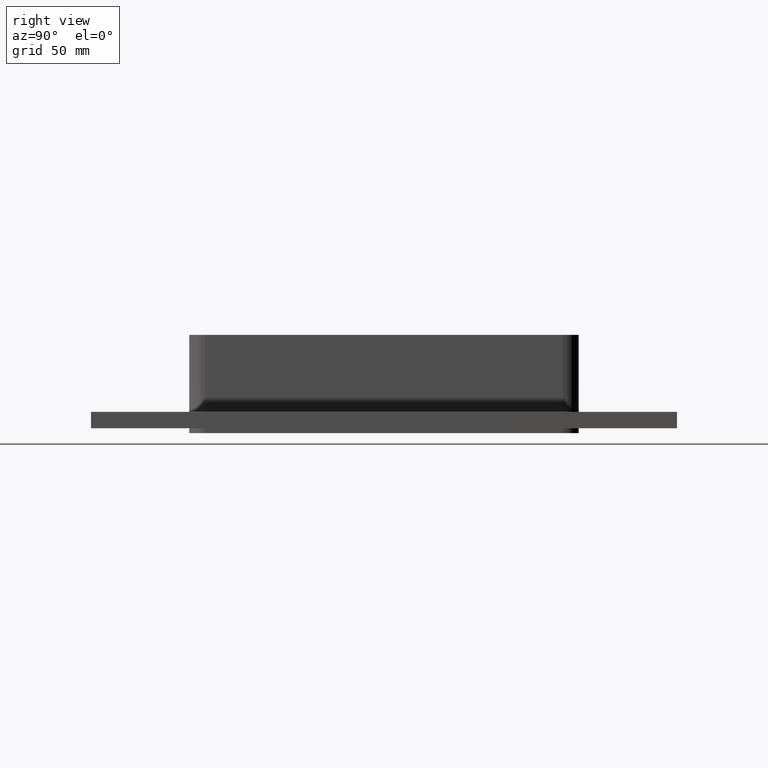
[diagram: clean part render]
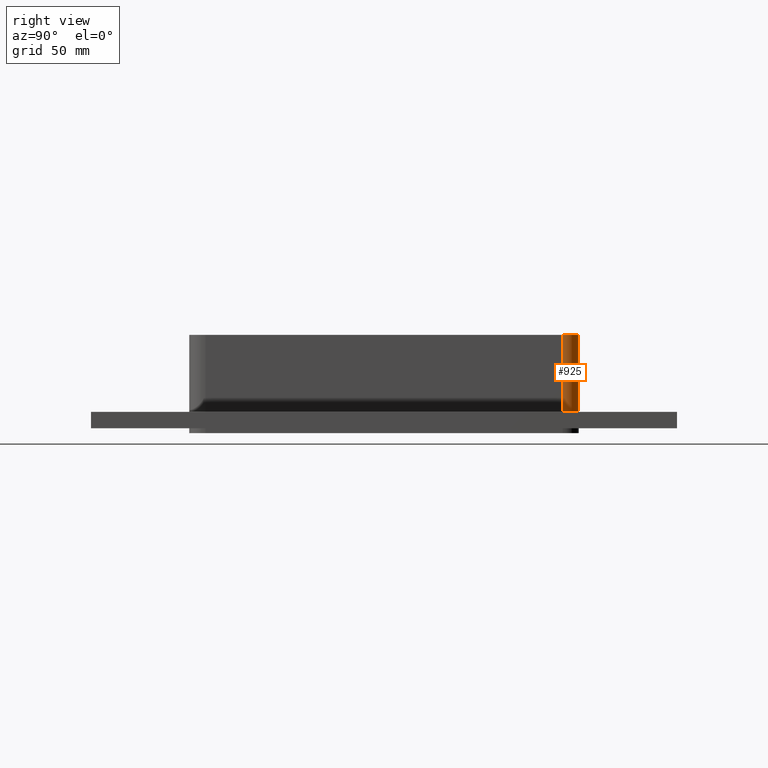
[diagram: same view with one face highlighted and labeled with its STEP entity id]
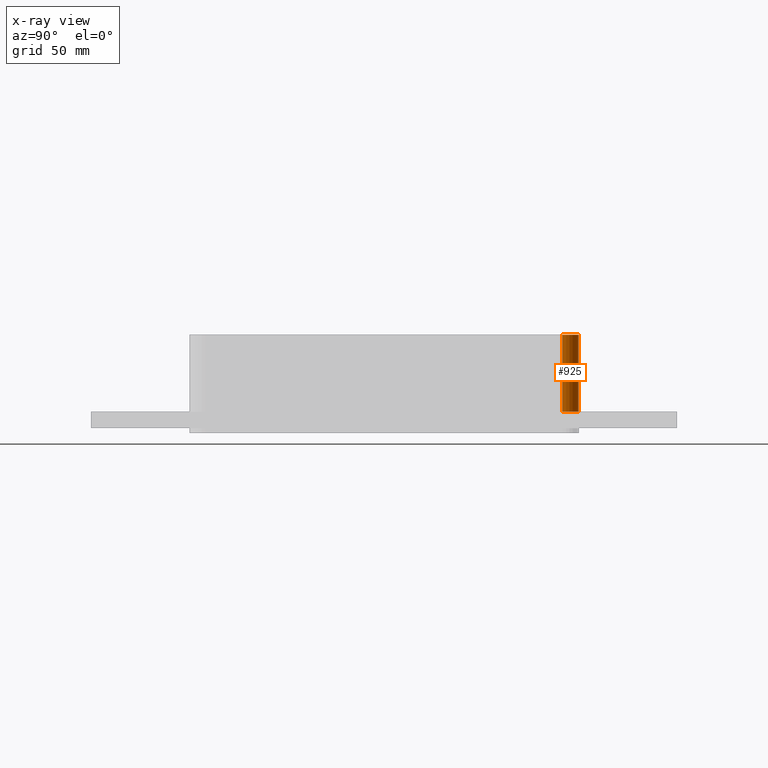
[diagram: x-ray of the same camera — body ghosted, the highlighted face saturated]
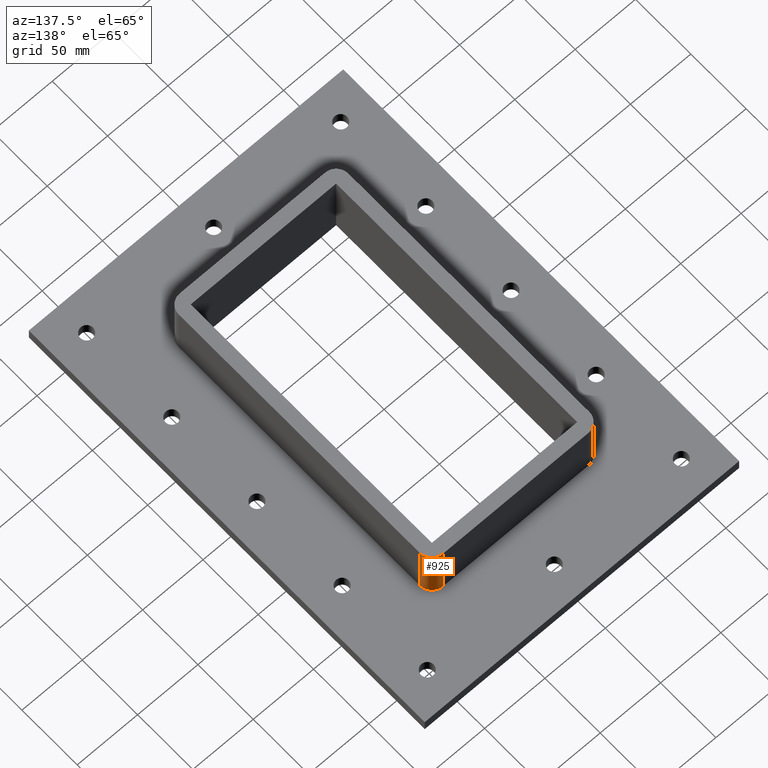
[diagram: same view with one face highlighted and labeled with its STEP entity id]
A machine part, right view. The second image highlights one B-rep face of the part: STEP entity #925.
The next image is the same camera in x-ray: the body ghosted, the highlighted face saturated — about 0% of this face is hidden behind the body in this view.
A second angle (auxiliary view) of the same face is appended — the face is thin or edge-on in the first view.
In plain terms, the highlighted cylindrical surface (edge-blend (fillet) strip) has radius 10 mm, axis along (0, 0, 1).
Its self-contained STEP definition (entity closure, byte-faithful):
#575=CARTESIAN_POINT('',(70.249999999999986,109.00000000000006,-17.0));
#576=VERTEX_POINT('',#575);
#577=CARTESIAN_POINT('',(60.249999999999986,119.00000000000006,-17.0));
#578=VERTEX_POINT('',#577);
#579=CARTESIAN_POINT('',(60.249999999999986,108.99999999999991,-17.0));
#580=DIRECTION('',(0.0,0.0,1.0));
#581=DIRECTION('',(0.707106781186547,0.707106781186547,0.0));
#582=AXIS2_PLACEMENT_3D('',#579,#580,#581);
#583=CIRCLE('',#582,9.999999999999998);
#584=EDGE_CURVE('',#576,#578,#583,.T.);
#858=CARTESIAN_POINT('',(70.249999999999986,108.99999999999991,30.0));
#859=VERTEX_POINT('',#858);
#860=CARTESIAN_POINT('',(70.249999999999986,108.99999999999991,30.0));
#861=DIRECTION('',(0.0,0.0,-1.0));
#862=VECTOR('',#861,47.0);
#863=LINE('',#860,#862);
#864=EDGE_CURVE('',#859,#576,#863,.T.);
#901=CARTESIAN_POINT('',(60.249999999999986,108.99999999999991,0.0));
#902=DIRECTION('',(0.0,0.0,1.0));
#903=DIRECTION('',(0.707106781186547,0.707106781186547,0.0));
#904=AXIS2_PLACEMENT_3D('',#901,#902,#903);
#905=CYLINDRICAL_SURFACE('',#904,10.0);
#906=ORIENTED_EDGE('',*,*,#584,.T.);
#907=CARTESIAN_POINT('',(60.249999999999986,118.99999999999991,30.0));
#908=VERTEX_POINT('',#907);
#909=CARTESIAN_POINT('',(60.249999999999986,118.99999999999991,-17.0));
#910=DIRECTION('',(0.0,0.0,1.0));
#911=VECTOR('',#910,47.0);
#912=LINE('',#909,#911);
#913=EDGE_CURVE('',#578,#908,#912,.T.);
#914=ORIENTED_EDGE('',*,*,#913,.T.);
#915=CARTESIAN_POINT('',(60.249999999999986,108.99999999999991,30.0));
#916=DIRECTION('',(0.0,0.0,-1.0));
#917=DIRECTION('',(0.707106781186547,0.707106781186547,0.0));
#918=AXIS2_PLACEMENT_3D('',#915,#916,#917);
#919=CIRCLE('',#918,9.999999999999998);
#920=EDGE_CURVE('',#908,#859,#919,.T.);
#921=ORIENTED_EDGE('',*,*,#920,.T.);
#922=ORIENTED_EDGE('',*,*,#864,.T.);
#923=EDGE_LOOP('',(#906,#914,#921,#922));
#924=FACE_OUTER_BOUND('',#923,.T.);
#925=ADVANCED_FACE('',(#924),#905,.T.);